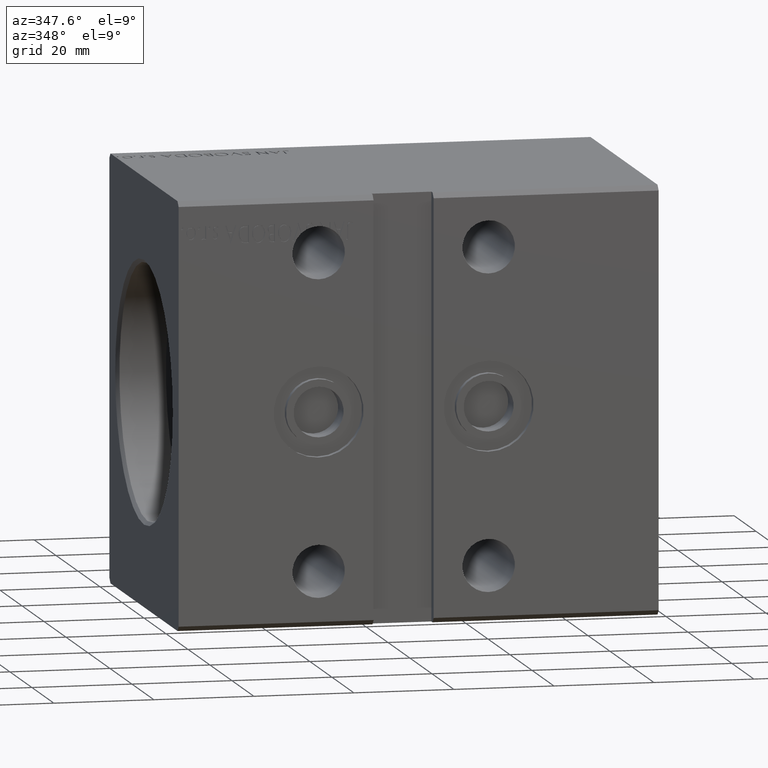
[diagram: clean part render]
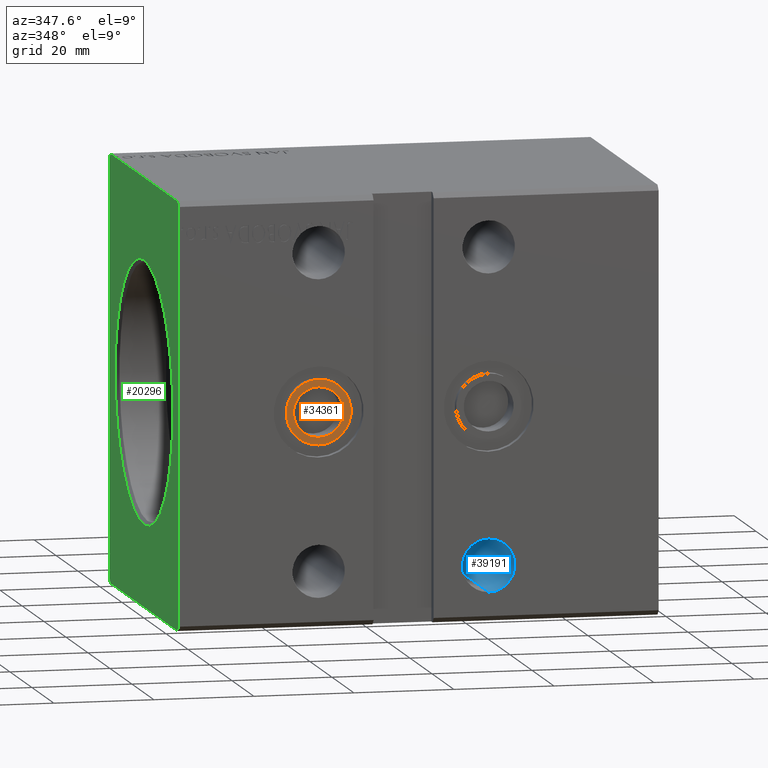
[diagram: same view with three faces highlighted in distinct colors, each labeled with its STEP entity id]
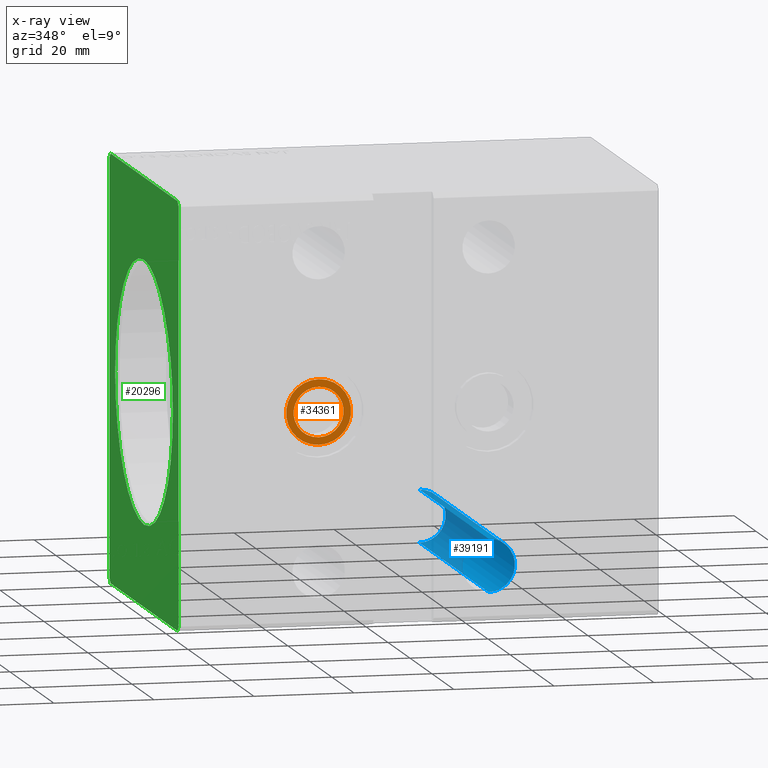
[diagram: x-ray of the same camera — body ghosted, the three highlighted faces saturated]
A machine part, auxiliary view with three faces highlighted in distinct colors.
The next image is the same camera in x-ray (body ghosted, the three faces saturated) — at least one of them is partly hidden behind the body in this view.
Their STEP definitions:

[orange] entity #34361 — the highlighted planar face has unit normal (-0, 1, 0).
#958 = DIRECTION ( 'NONE',  ( 0.000000000000000000, 0.000000000000000000, -1.000000000000000000 ) ) ;
#1432 = DIRECTION ( 'NONE',  ( 0.000000000000000000, 0.000000000000000000, -1.000000000000000000 ) ) ;
#2356 = CIRCLE ( 'NONE', #7584, 6.500000000000007994 ) ;
#2619 = CIRCLE ( 'NONE', #18994, 6.500000000000007994 ) ;
#4642 = CARTESIAN_POINT ( 'NONE',  ( 28.00000000000000355, -31.50000000000000000, -6.938893903907227589E-15 ) ) ;
#7122 = DIRECTION ( 'NONE',  ( 0.000000000000000000, -1.000000000000000000, -5.507058653894625853E-17 ) ) ;
#7584 = AXIS2_PLACEMENT_3D ( 'NONE', #20268, #7122, #958 ) ;
#9672 = ORIENTED_EDGE ( 'NONE', *, *, #40050, .T. ) ;
#10390 = DIRECTION ( 'NONE',  ( 0.000000000000000000, -1.000000000000000000, -5.507058653894625853E-17 ) ) ;
#11739 = AXIS2_PLACEMENT_3D ( 'NONE', #35371, #22809, #1432 ) ;
#16049 = ORIENTED_EDGE ( 'NONE', *, *, #35910, .F. ) ;
#17616 = VERTEX_POINT ( 'NONE', #26970 ) ;
#17638 = VERTEX_POINT ( 'NONE', #38707 ) ;
#18260 = ORIENTED_EDGE ( 'NONE', *, *, #31504, .F. ) ;
#18994 = AXIS2_PLACEMENT_3D ( 'NONE', #4642, #10390, #38568 ) ;
#19057 = AXIS2_PLACEMENT_3D ( 'NONE', #37251, #30066, #39517 ) ;
#19631 = CIRCLE ( 'NONE', #11739, 4.999999999999997335 ) ;
#20268 = CARTESIAN_POINT ( 'NONE',  ( 28.00000000000000355, -31.50000000000000000, -6.938893903907227589E-15 ) ) ;
#22809 = DIRECTION ( 'NONE',  ( 0.000000000000000000, -1.000000000000000000, -5.507058653894625853E-17 ) ) ;
#25501 = EDGE_LOOP ( 'NONE', ( #16049, #18260 ) ) ;
#25568 = CARTESIAN_POINT ( 'NONE',  ( 28.00000000000000355, -31.50000000000000000, -5.000000000000004441 ) ) ;
#26970 = CARTESIAN_POINT ( 'NONE',  ( 28.00000000000000355, -31.50000000000000000, 4.999999999999990230 ) ) ;
#27010 = FACE_BOUND ( 'NONE', #25501, .T. ) ;
#27486 = AXIS2_PLACEMENT_3D ( 'NONE', #40169, #37091, #30311 ) ;
#27786 = VERTEX_POINT ( 'NONE', #25568 ) ;
#28593 = EDGE_CURVE ( 'NONE', #34426, #17638, #2619, .T. ) ;
#29254 = ORIENTED_EDGE ( 'NONE', *, *, #28593, .T. ) ;
#30066 = DIRECTION ( 'NONE',  ( 0.000000000000000000, -1.000000000000000000, -5.507058653894625853E-17 ) ) ;
#30311 = DIRECTION ( 'NONE',  ( 0.000000000000000000, -0.000000000000000000, 1.000000000000000000 ) ) ;
#31504 = EDGE_CURVE ( 'NONE', #17616, #27786, #36804, .T. ) ;
#33188 = FACE_OUTER_BOUND ( 'NONE', #33771, .T. ) ;
#33771 = EDGE_LOOP ( 'NONE', ( #29254, #9672 ) ) ;
#34361 = ADVANCED_FACE ( 'NONE', ( #27010, #33188 ), #39762, .F. ) ;
#34426 = VERTEX_POINT ( 'NONE', #40572 ) ;
#35371 = CARTESIAN_POINT ( 'NONE',  ( 28.00000000000000355, -31.50000000000000000, -6.938893903907227589E-15 ) ) ;
#35910 = EDGE_CURVE ( 'NONE', #27786, #17616, #19631, .T. ) ;
#36804 = CIRCLE ( 'NONE', #19057, 4.999999999999997335 ) ;
#37091 = DIRECTION ( 'NONE',  ( -0.000000000000000000, 1.000000000000000000, 0.000000000000000000 ) ) ;
#37251 = CARTESIAN_POINT ( 'NONE',  ( 28.00000000000000355, -31.50000000000000000, -6.938893903907227589E-15 ) ) ;
#38568 = DIRECTION ( 'NONE',  ( 0.000000000000000000, 0.000000000000000000, -1.000000000000000000 ) ) ;
#38707 = CARTESIAN_POINT ( 'NONE',  ( 28.00000000000000355, -31.50000000000000000, 6.500000000000001776 ) ) ;
#39517 = DIRECTION ( 'NONE',  ( 0.000000000000000000, 0.000000000000000000, -1.000000000000000000 ) ) ;
#39762 = PLANE ( 'NONE',  #27486 ) ;
#40050 = EDGE_CURVE ( 'NONE', #17638, #34426, #2356, .T. ) ;
#40169 = CARTESIAN_POINT ( 'NONE',  ( 96.00000000000000000, -31.50000000000000000, 41.49999999999999289 ) ) ;
#40572 = CARTESIAN_POINT ( 'NONE',  ( 28.00000000000000355, -31.50000000000000000, -6.500000000000015099 ) ) ;

[blue] entity #39191 — the highlighted cylindrical surface (edge-blend (fillet) strip) has radius 5.25 mm, axis along (-0, -1, -0).
#517 = VECTOR ( 'NONE', #39928, 1000.000000000000000 ) ;
#1896 = LINE ( 'NONE', #33149, #517 ) ;
#2688 = ORIENTED_EDGE ( 'NONE', *, *, #29848, .F. ) ;
#3837 = DIRECTION ( 'NONE',  ( 0.000000000000000000, 0.000000000000000000, -1.000000000000000000 ) ) ;
#5638 = ORIENTED_EDGE ( 'NONE', *, *, #23781, .T. ) ;
#5913 = CARTESIAN_POINT ( 'NONE',  ( 62.00000000000000711, 31.50000000000002842, -31.49999999999999289 ) ) ;
#6832 = VERTEX_POINT ( 'NONE', #16328 ) ;
#7482 = AXIS2_PLACEMENT_3D ( 'NONE', #19449, #19255, #3837 ) ;
#8018 = CYLINDRICAL_SURFACE ( 'NONE', #23346, 5.249999999999997335 ) ;
#9831 = DIRECTION ( 'NONE',  ( -0.000000000000000000, -1.000000000000000000, -5.507058653894625853E-17 ) ) ;
#11112 = EDGE_CURVE ( 'NONE', #37841, #22310, #31768, .T. ) ;
#11840 = CARTESIAN_POINT ( 'NONE',  ( 62.00000000000000711, -31.50000000000000000, -36.75000000000000000 ) ) ;
#16328 = CARTESIAN_POINT ( 'NONE',  ( 62.00000000000000711, -31.50000000000000000, -26.25000000000000355 ) ) ;
#17466 = CARTESIAN_POINT ( 'NONE',  ( 62.00000000000000711, 31.50000000000002842, -36.74999999999999289 ) ) ;
#19255 = DIRECTION ( 'NONE',  ( 0.000000000000000000, -1.000000000000000000, -5.507058653894625853E-17 ) ) ;
#19449 = CARTESIAN_POINT ( 'NONE',  ( 62.00000000000000711, 31.50000000000002842, -31.49999999999999289 ) ) ;
#20564 = DIRECTION ( 'NONE',  ( -0.000000000000000000, -1.000000000000000000, -5.507058653894625853E-17 ) ) ;
#22310 = VERTEX_POINT ( 'NONE', #38140 ) ;
#23007 = CARTESIAN_POINT ( 'NONE',  ( 62.00000000000000711, -31.50000000000000000, -31.50000000000000000 ) ) ;
#23102 = ORIENTED_EDGE ( 'NONE', *, *, #38096, .F. ) ;
#23346 = AXIS2_PLACEMENT_3D ( 'NONE', #5913, #20564, #25028 ) ;
#23781 = EDGE_CURVE ( 'NONE', #37841, #29582, #1896, .T. ) ;
#24771 = VECTOR ( 'NONE', #9831, 1000.000000000000000 ) ;
#25028 = DIRECTION ( 'NONE',  ( 0.000000000000000000, 0.000000000000000000, -1.000000000000000000 ) ) ;
#25496 = DIRECTION ( 'NONE',  ( -0.000000000000000000, 1.000000000000000000, 0.000000000000000000 ) ) ;
#25668 = CARTESIAN_POINT ( 'NONE',  ( 62.00000000000000711, 31.50000000000002842, -26.24999999999999645 ) ) ;
#26063 = LINE ( 'NONE', #25668, #24771 ) ;
#26897 = AXIS2_PLACEMENT_3D ( 'NONE', #23007, #25496, #35363 ) ;
#29582 = VERTEX_POINT ( 'NONE', #11840 ) ;
#29848 = EDGE_CURVE ( 'NONE', #6832, #29582, #39366, .T. ) ;
#31768 = CIRCLE ( 'NONE', #7482, 5.249999999999997335 ) ;
#33149 = CARTESIAN_POINT ( 'NONE',  ( 62.00000000000000711, 31.50000000000002842, -36.74999999999999289 ) ) ;
#34290 = FACE_OUTER_BOUND ( 'NONE', #37055, .T. ) ;
#34928 = ORIENTED_EDGE ( 'NONE', *, *, #11112, .F. ) ;
#35363 = DIRECTION ( 'NONE',  ( 0.000000000000000000, 0.000000000000000000, 1.000000000000000000 ) ) ;
#37055 = EDGE_LOOP ( 'NONE', ( #23102, #34928, #5638, #2688 ) ) ;
#37841 = VERTEX_POINT ( 'NONE', #17466 ) ;
#38096 = EDGE_CURVE ( 'NONE', #22310, #6832, #26063, .T. ) ;
#38140 = CARTESIAN_POINT ( 'NONE',  ( 62.00000000000000711, 31.50000000000002842, -26.24999999999999645 ) ) ;
#39191 = ADVANCED_FACE ( 'NONE', ( #34290 ), #8018, .F. ) ;
#39366 = CIRCLE ( 'NONE', #26897, 5.249999999999997335 ) ;
#39928 = DIRECTION ( 'NONE',  ( -0.000000000000000000, -1.000000000000000000, -5.507058653894625853E-17 ) ) ;

[green] entity #20296 — the highlighted planar face has unit normal (1, 0, 0).
#45 = ORIENTED_EDGE ( 'NONE', *, *, #32202, .T. ) ;
#460 = VECTOR ( 'NONE', #12198, 1000.000000000000000 ) ;
#2222 = DIRECTION ( 'NONE',  ( 1.000000000000000000, 0.000000000000000000, 0.000000000000000000 ) ) ;
#2529 = VECTOR ( 'NONE', #10451, 1000.000000000000114 ) ;
#2612 = CARTESIAN_POINT ( 'NONE',  ( 0.000000000000000000, 31.50000000000001421, 41.49999999999999289 ) ) ;
#2647 = ORIENTED_EDGE ( 'NONE', *, *, #10310, .F. ) ;
#3694 = EDGE_CURVE ( 'NONE', #29957, #17555, #38717, .T. ) ;
#4706 = ORIENTED_EDGE ( 'NONE', *, *, #16686, .F. ) ;
#5277 = DIRECTION ( 'NONE',  ( 0.000000000000000000, 0.000000000000000000, 1.000000000000000000 ) ) ;
#5395 = VERTEX_POINT ( 'NONE', #13739 ) ;
#6823 = DIRECTION ( 'NONE',  ( 1.000000000000000000, 0.000000000000000000, 0.000000000000000000 ) ) ;
#7851 = DIRECTION ( 'NONE',  ( 1.000000000000000000, 0.000000000000000000, 0.000000000000000000 ) ) ;
#8166 = DIRECTION ( 'NONE',  ( 0.000000000000000000, 0.000000000000000000, -1.000000000000000000 ) ) ;
#8520 = LINE ( 'NONE', #21065, #36626 ) ;
#8630 = ORIENTED_EDGE ( 'NONE', *, *, #40060, .F. ) ;
#9681 = EDGE_LOOP ( 'NONE', ( #45, #34787 ) ) ;
#9744 = DIRECTION ( 'NONE',  ( 0.000000000000000000, 0.7071067811865451302, -0.7071067811865500152 ) ) ;
#9832 = VERTEX_POINT ( 'NONE', #16226 ) ;
#10129 = CARTESIAN_POINT ( 'NONE',  ( 0.000000000000000000, 30.50000000000001776, -42.50000000000000711 ) ) ;
#10310 = EDGE_CURVE ( 'NONE', #17555, #30185, #20682, .T. ) ;
#10451 = DIRECTION ( 'NONE',  ( 0.000000000000000000, -0.7071067811865474617, 0.7071067811865474617 ) ) ;
#11252 = EDGE_CURVE ( 'NONE', #23072, #9832, #24773, .T. ) ;
#11412 = VECTOR ( 'NONE', #5277, 1000.000000000000000 ) ;
#12198 = DIRECTION ( 'NONE',  ( 0.000000000000000000, 1.000000000000000000, 0.000000000000000000 ) ) ;
#13145 = LINE ( 'NONE', #29177, #2529 ) ;
#13739 = CARTESIAN_POINT ( 'NONE',  ( 0.000000000000000000, 30.50000000000001421, 42.49999999999999289 ) ) ;
#13834 = CIRCLE ( 'NONE', #23663, 26.19999999999998863 ) ;
#13907 = CARTESIAN_POINT ( 'NONE',  ( 0.000000000000000000, 0.000000000000000000, 26.19999999999998863 ) ) ;
#15603 = AXIS2_PLACEMENT_3D ( 'NONE', #30065, #7851, #29452 ) ;
#15828 = EDGE_CURVE ( 'NONE', #18575, #23072, #40695, .T. ) ;
#16226 = CARTESIAN_POINT ( 'NONE',  ( 0.000000000000000000, -30.50000000000000711, -42.50000000000000711 ) ) ;
#16618 = CARTESIAN_POINT ( 'NONE',  ( 0.000000000000000000, -31.50000000000000000, 41.49999999999999289 ) ) ;
#16686 = EDGE_CURVE ( 'NONE', #9832, #29957, #36695, .T. ) ;
#16982 = LINE ( 'NONE', #32818, #39110 ) ;
#17293 = EDGE_CURVE ( 'NONE', #5395, #32119, #8520, .T. ) ;
#17523 = EDGE_CURVE ( 'NONE', #24505, #29484, #19525, .T. ) ;
#17555 = VERTEX_POINT ( 'NONE', #29242 ) ;
#18575 = VERTEX_POINT ( 'NONE', #26495 ) ;
#19525 = CIRCLE ( 'NONE', #15603, 26.19999999999998863 ) ;
#19962 = FACE_BOUND ( 'NONE', #9681, .T. ) ;
#20296 = ADVANCED_FACE ( 'NONE', ( #19962, #35405 ), #22643, .F. ) ;
#20682 = LINE ( 'NONE', #27055, #11412 ) ;
#20852 = CARTESIAN_POINT ( 'NONE',  ( 0.000000000000000000, -30.50000000000000711, -42.50000000000000711 ) ) ;
#21065 = CARTESIAN_POINT ( 'NONE',  ( 0.000000000000000000, 30.50000000000001421, 42.49999999999999289 ) ) ;
#21287 = VECTOR ( 'NONE', #9744, 1000.000000000000114 ) ;
#21470 = VECTOR ( 'NONE', #37808, 1000.000000000000000 ) ;
#22507 = ORIENTED_EDGE ( 'NONE', *, *, #15828, .F. ) ;
#22643 = PLANE ( 'NONE',  #26811 ) ;
#23072 = VERTEX_POINT ( 'NONE', #25499 ) ;
#23293 = CARTESIAN_POINT ( 'NONE',  ( 0.000000000000000000, 3.208574613766063722E-15, -26.19999999999998863 ) ) ;
#23663 = AXIS2_PLACEMENT_3D ( 'NONE', #36550, #2222, #8166 ) ;
#23827 = CARTESIAN_POINT ( 'NONE',  ( 0.000000000000000000, 30.50000000000001776, -42.50000000000000711 ) ) ;
#24505 = VERTEX_POINT ( 'NONE', #23293 ) ;
#24773 = LINE ( 'NONE', #31555, #21287 ) ;
#25019 = EDGE_CURVE ( 'NONE', #30185, #5395, #13145, .T. ) ;
#25499 = CARTESIAN_POINT ( 'NONE',  ( 0.000000000000000000, -31.50000000000000000, -41.50000000000000711 ) ) ;
#25764 = DIRECTION ( 'NONE',  ( 0.000000000000000000, 0.7071067811865462405, 0.7071067811865489050 ) ) ;
#25787 = ORIENTED_EDGE ( 'NONE', *, *, #11252, .F. ) ;
#26495 = CARTESIAN_POINT ( 'NONE',  ( 0.000000000000000000, -31.50000000000000000, 41.49999999999999289 ) ) ;
#26811 = AXIS2_PLACEMENT_3D ( 'NONE', #38080, #6823, #28825 ) ;
#27055 = CARTESIAN_POINT ( 'NONE',  ( 0.000000000000000000, 31.50000000000001421, -41.50000000000000711 ) ) ;
#27583 = ORIENTED_EDGE ( 'NONE', *, *, #17293, .F. ) ;
#28825 = DIRECTION ( 'NONE',  ( 0.000000000000000000, 0.000000000000000000, -1.000000000000000000 ) ) ;
#29177 = CARTESIAN_POINT ( 'NONE',  ( 0.000000000000000000, 31.50000000000001421, 41.49999999999999289 ) ) ;
#29242 = CARTESIAN_POINT ( 'NONE',  ( 0.000000000000000000, 31.50000000000001421, -41.50000000000000711 ) ) ;
#29452 = DIRECTION ( 'NONE',  ( 0.000000000000000000, 0.000000000000000000, -1.000000000000000000 ) ) ;
#29484 = VERTEX_POINT ( 'NONE', #13907 ) ;
#29957 = VERTEX_POINT ( 'NONE', #23827 ) ;
#30065 = CARTESIAN_POINT ( 'NONE',  ( 0.000000000000000000, 0.000000000000000000, 0.000000000000000000 ) ) ;
#30185 = VERTEX_POINT ( 'NONE', #2612 ) ;
#31555 = CARTESIAN_POINT ( 'NONE',  ( 0.000000000000000000, -31.50000000000000000, -41.50000000000000711 ) ) ;
#32119 = VERTEX_POINT ( 'NONE', #38205 ) ;
#32202 = EDGE_CURVE ( 'NONE', #29484, #24505, #13834, .T. ) ;
#32818 = CARTESIAN_POINT ( 'NONE',  ( 0.000000000000000000, -30.50000000000000355, 42.49999999999999289 ) ) ;
#33618 = DIRECTION ( 'NONE',  ( 0.000000000000000000, -1.000000000000000000, 0.000000000000000000 ) ) ;
#34274 = VECTOR ( 'NONE', #25764, 999.9999999999998863 ) ;
#34787 = ORIENTED_EDGE ( 'NONE', *, *, #17523, .T. ) ;
#35405 = FACE_OUTER_BOUND ( 'NONE', #37975, .T. ) ;
#36550 = CARTESIAN_POINT ( 'NONE',  ( 0.000000000000000000, 0.000000000000000000, 0.000000000000000000 ) ) ;
#36626 = VECTOR ( 'NONE', #33618, 1000.000000000000000 ) ;
#36695 = LINE ( 'NONE', #20852, #460 ) ;
#37127 = ORIENTED_EDGE ( 'NONE', *, *, #25019, .F. ) ;
#37808 = DIRECTION ( 'NONE',  ( 0.000000000000000000, 0.000000000000000000, -1.000000000000000000 ) ) ;
#37975 = EDGE_LOOP ( 'NONE', ( #37127, #2647, #38041, #4706, #25787, #22507, #8630, #27583 ) ) ;
#38041 = ORIENTED_EDGE ( 'NONE', *, *, #3694, .F. ) ;
#38080 = CARTESIAN_POINT ( 'NONE',  ( 0.000000000000000000, 0.000000000000000000, 0.000000000000000000 ) ) ;
#38205 = CARTESIAN_POINT ( 'NONE',  ( 0.000000000000000000, -30.50000000000000355, 42.49999999999999289 ) ) ;
#38717 = LINE ( 'NONE', #10129, #34274 ) ;
#38984 = DIRECTION ( 'NONE',  ( 0.000000000000000000, -0.7071067811865462405, -0.7071067811865489050 ) ) ;
#39110 = VECTOR ( 'NONE', #38984, 999.9999999999998863 ) ;
#40060 = EDGE_CURVE ( 'NONE', #32119, #18575, #16982, .T. ) ;
#40695 = LINE ( 'NONE', #16618, #21470 ) ;